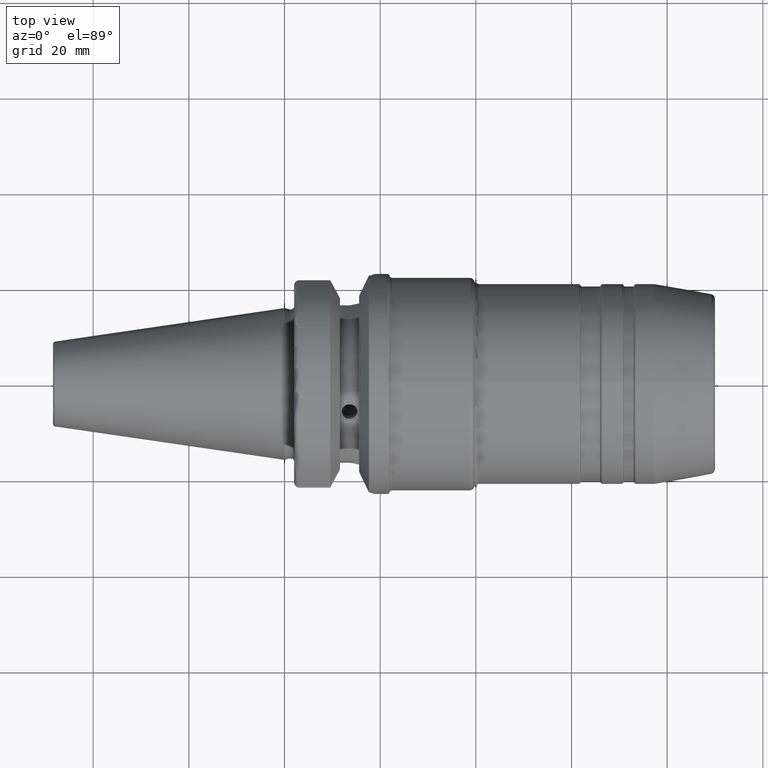
[diagram: clean part render]
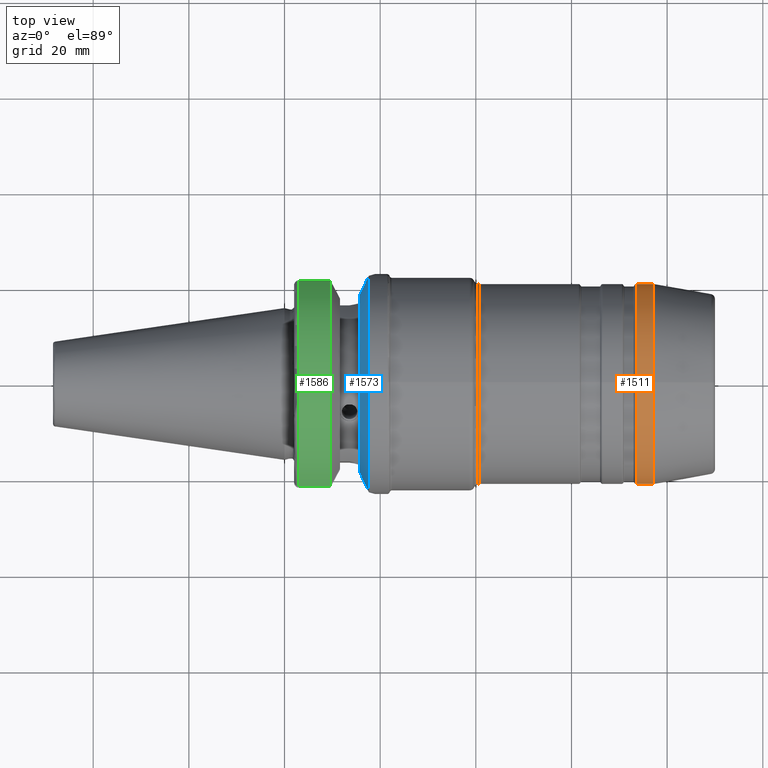
[diagram: same view with three faces highlighted in distinct colors, each labeled with its STEP entity id]
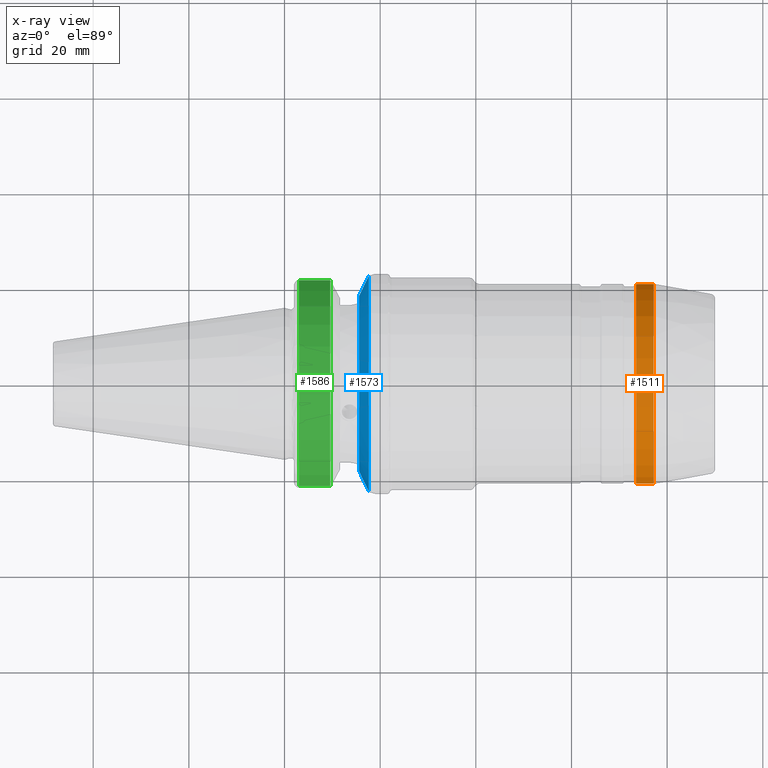
[diagram: x-ray of the same camera — body ghosted, the three highlighted faces saturated]
A machine part, top view with three faces highlighted in distinct colors.
The next image is the same camera in x-ray (body ghosted, the three faces saturated) — at least one of them is partly hidden behind the body in this view.
Their STEP definitions:

[orange] entity #1511 — the highlighted cylindrical surface (bore or boss wall) has radius 21 mm, axis along (1, 0, 0).
#126=LINE('',#2429,#201);
#201=VECTOR('',#1932,21.);
#272=CYLINDRICAL_SURFACE('',#1654,21.);
#323=FACE_OUTER_BOUND('',#418,.T.);
#418=EDGE_LOOP('',(#1064,#1065,#1066,#1067));
#531=CIRCLE('',#1652,21.);
#533=CIRCLE('',#1655,21.);
#632=VERTEX_POINT('',#2423);
#633=VERTEX_POINT('',#2427);
#793=EDGE_CURVE('',#632,#632,#531,.T.);
#795=EDGE_CURVE('',#633,#633,#533,.T.);
#796=EDGE_CURVE('',#633,#632,#126,.T.);
#1064=ORIENTED_EDGE('',*,*,#795,.F.);
#1065=ORIENTED_EDGE('',*,*,#796,.T.);
#1066=ORIENTED_EDGE('',*,*,#793,.F.);
#1067=ORIENTED_EDGE('',*,*,#796,.F.);
#1511=ADVANCED_FACE('',(#323),#272,.T.);
#1652=AXIS2_PLACEMENT_3D('',#2424,#1924,#1925);
#1654=AXIS2_PLACEMENT_3D('',#2426,#1928,#1929);
#1655=AXIS2_PLACEMENT_3D('',#2428,#1930,#1931);
#1924=DIRECTION('center_axis',(-1.,0.,0.));
#1925=DIRECTION('ref_axis',(0.,1.22464679914735E-16,1.));
#1928=DIRECTION('center_axis',(1.,0.,0.));
#1929=DIRECTION('ref_axis',(0.,0.,-1.));
#1930=DIRECTION('center_axis',(1.,0.,0.));
#1931=DIRECTION('ref_axis',(0.,1.22464679914735E-16,1.));
#1932=DIRECTION('',(-1.,0.,0.));
#2423=CARTESIAN_POINT('',(73.5196152422707,-2.57175827820944E-15,21.));
#2424=CARTESIAN_POINT('Origin',(73.5196152422707,0.,0.));
#2426=CARTESIAN_POINT('Origin',(75.2641455202275,0.,0.));
#2427=CARTESIAN_POINT('',(77.1521272423342,-2.57175827820944E-15,21.));
#2428=CARTESIAN_POINT('Origin',(77.1521272423342,0.,0.));
#2429=CARTESIAN_POINT('',(75.2641455202275,-2.57175827820944E-15,21.));

[blue] entity #1573 — the highlighted conical surface has half-angle 60.125 deg.
#62=B_SPLINE_CURVE_WITH_KNOTS('',3,(#2936,#2937,#2938,#2939,#2940,#2941),
 .UNSPECIFIED.,.F.,.F.,(4,2,4),(9.25978800315029,9.40675815006574,9.7527233553007),
 .UNSPECIFIED.);
#69=B_SPLINE_CURVE_WITH_KNOTS('',3,(#3055,#3056,#3057,#3058,#3059,#3060),
 .UNSPECIFIED.,.F.,.F.,(4,2,4),(1.87172696882225,2.21769217405721,2.36466232097266),
 .UNSPECIFIED.);
#113=CONICAL_SURFACE('',#1799,21.2331286619655,1.04937921276159);
#385=FACE_OUTER_BOUND('',#489,.T.);
#489=EDGE_LOOP('',(#1399,#1400,#1401,#1402));
#587=CIRCLE('',#1778,23.);
#596=CIRCLE('',#1800,19.466257323931);
#727=VERTEX_POINT('',#2928);
#728=VERTEX_POINT('',#2935);
#735=VERTEX_POINT('',#2979);
#747=VERTEX_POINT('',#3053);
#930=EDGE_CURVE('',#727,#728,#62,.T.);
#946=EDGE_CURVE('',#735,#727,#587,.T.);
#968=EDGE_CURVE('',#747,#735,#69,.T.);
#974=EDGE_CURVE('',#747,#728,#596,.T.);
#1399=ORIENTED_EDGE('',*,*,#930,.F.);
#1400=ORIENTED_EDGE('',*,*,#946,.F.);
#1401=ORIENTED_EDGE('',*,*,#968,.F.);
#1402=ORIENTED_EDGE('',*,*,#974,.T.);
#1573=ADVANCED_FACE('',(#385),#113,.T.);
#1778=AXIS2_PLACEMENT_3D('',#2990,#2225,#2226);
#1799=AXIS2_PLACEMENT_3D('',#3072,#2279,#2280);
#1800=AXIS2_PLACEMENT_3D('',#3073,#2281,#2282);
#2225=DIRECTION('center_axis',(1.,1.62798202122572E-21,0.));
#2226=DIRECTION('ref_axis',(0.,0.,-1.));
#2279=DIRECTION('center_axis',(1.,1.62798202122572E-21,0.));
#2280=DIRECTION('ref_axis',(0.,1.,0.));
#2281=DIRECTION('center_axis',(1.,1.62798202122572E-21,0.));
#2282=DIRECTION('ref_axis',(0.,0.,-1.));
#2928=CARTESIAN_POINT('',(17.6299409595063,-22.5570191120744,4.49231441213885));
#2935=CARTESIAN_POINT('',(15.6,-18.3236233917175,6.57114906237867));
#2936=CARTESIAN_POINT('Ctrl Pts',(17.6299409595063,-22.5570191120744,4.49231441213885));
#2937=CARTESIAN_POINT('Ctrl Pts',(17.4363948664282,-22.1561594342104,4.78011182703289));
#2938=CARTESIAN_POINT('Ctrl Pts',(17.2377433516599,-21.7440485808551,5.03500381733927));
#2939=CARTESIAN_POINT('Ctrl Pts',(16.6013448473778,-20.4213600687136,5.77346727707879));
#2940=CARTESIAN_POINT('Ctrl Pts',(16.1098572405085,-19.3959223553921,6.21035429941431));
#2941=CARTESIAN_POINT('Ctrl Pts',(15.6,-18.3236233917175,6.57114906237867));
#2979=CARTESIAN_POINT('',(17.6299409595063,22.5570191120744,4.49231441213885));
#2990=CARTESIAN_POINT('Origin',(17.6299409595063,2.08176427085476E-15,0.));
#3053=CARTESIAN_POINT('',(15.6,18.3236233917175,6.57114906237867));
#3055=CARTESIAN_POINT('Ctrl Pts',(15.6,18.3236233917175,6.57114906237867));
#3056=CARTESIAN_POINT('Ctrl Pts',(16.1098572405085,19.3959223553921,6.21035429941431));
#3057=CARTESIAN_POINT('Ctrl Pts',(16.6013448473778,20.4213600687136,5.77346727707879));
#3058=CARTESIAN_POINT('Ctrl Pts',(17.2377433516599,21.744048580855,5.03500381733928));
#3059=CARTESIAN_POINT('Ctrl Pts',(17.4363948664282,22.1561594342104,4.78011182703289));
#3060=CARTESIAN_POINT('Ctrl Pts',(17.6299409595063,22.5570191120744,4.49231441213885));
#3072=CARTESIAN_POINT('Origin',(16.6149704797531,2.08176261850107E-15,0.));
#3073=CARTESIAN_POINT('Origin',(15.6,2.08176096614738E-15,0.));

[green] entity #1586 — the highlighted cylindrical surface (partial cylindrical patch) has radius 23 mm, axis along (1, 0, 0).
#168=LINE('',#2949,#243);
#184=LINE('',#3067,#259);
#243=VECTOR('',#2208,10.);
#259=VECTOR('',#2272,10.);
#306=CYLINDRICAL_SURFACE('',#1830,23.);
#398=FACE_OUTER_BOUND('',#504,.T.);
#504=EDGE_LOOP('',(#1454,#1455,#1456,#1457));
#566=CIRCLE('',#1726,23.);
#614=CIRCLE('',#1831,23.);
#681=VERTEX_POINT('',#2708);
#682=VERTEX_POINT('',#2719);
#729=VERTEX_POINT('',#2945);
#748=VERTEX_POINT('',#3062);
#869=EDGE_CURVE('',#682,#681,#566,.T.);
#934=EDGE_CURVE('',#681,#729,#168,.T.);
#971=EDGE_CURVE('',#748,#682,#184,.T.);
#998=EDGE_CURVE('',#748,#729,#614,.T.);
#1454=ORIENTED_EDGE('',*,*,#934,.T.);
#1455=ORIENTED_EDGE('',*,*,#998,.F.);
#1456=ORIENTED_EDGE('',*,*,#971,.T.);
#1457=ORIENTED_EDGE('',*,*,#869,.T.);
#1586=ADVANCED_FACE('',(#398),#306,.T.);
#1726=AXIS2_PLACEMENT_3D('',#2720,#2091,#2092);
#1830=AXIS2_PLACEMENT_3D('',#3122,#2347,#2348);
#1831=AXIS2_PLACEMENT_3D('',#3123,#2349,#2350);
#2091=DIRECTION('center_axis',(1.,1.62798202122572E-21,0.));
#2092=DIRECTION('ref_axis',(0.,0.,-1.));
#2208=DIRECTION('',(1.,1.62798202122572E-21,0.));
#2272=DIRECTION('',(-1.,-1.62798202122572E-21,0.));
#2347=DIRECTION('center_axis',(1.,1.62798202122572E-21,0.));
#2348=DIRECTION('ref_axis',(0.,1.,0.));
#2349=DIRECTION('center_axis',(1.,1.62798202122572E-21,0.));
#2350=DIRECTION('ref_axis',(0.,0.,-1.));
#2708=CARTESIAN_POINT('',(2.99999999999999,-21.5452430944745,8.05));
#2719=CARTESIAN_POINT('',(2.99999999999999,21.5452430944745,8.05));
#2720=CARTESIAN_POINT('Origin',(2.99999999999999,2.08174045357391E-15,0.));
#2945=CARTESIAN_POINT('',(9.57005904049381,-21.5452430944744,8.05));
#2949=CARTESIAN_POINT('',(6.2850295202469,-21.5452430944745,8.05));
#3062=CARTESIAN_POINT('',(9.57005904049381,21.5452430944744,8.05));
#3067=CARTESIAN_POINT('',(6.2850295202469,21.5452430944745,8.05));
#3122=CARTESIAN_POINT('Origin',(6.2850295202469,2.08174580154291E-15,0.));
#3123=CARTESIAN_POINT('Origin',(9.57005904049381,2.08175114951191E-15,0.));